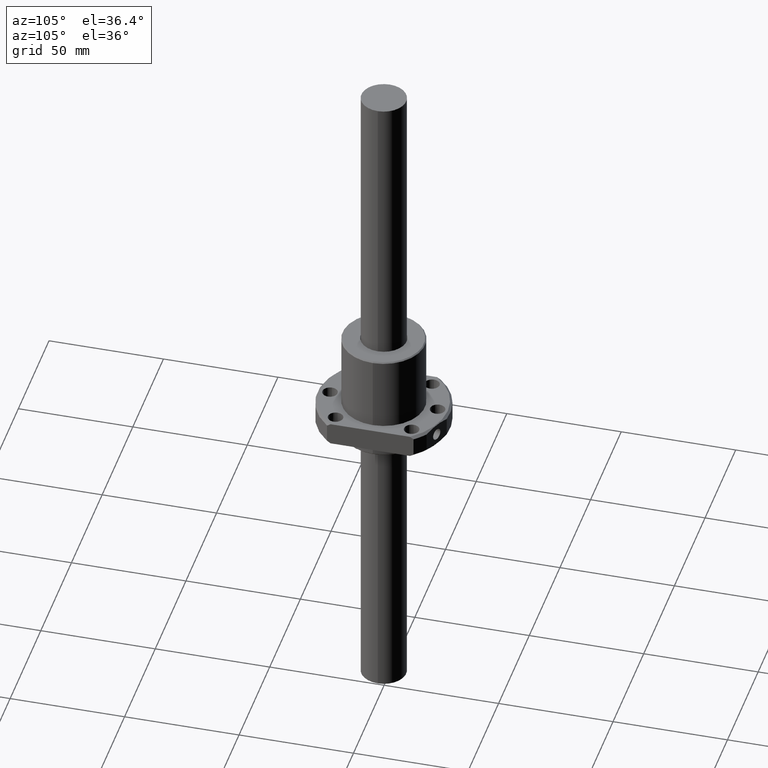
[diagram: clean part render]
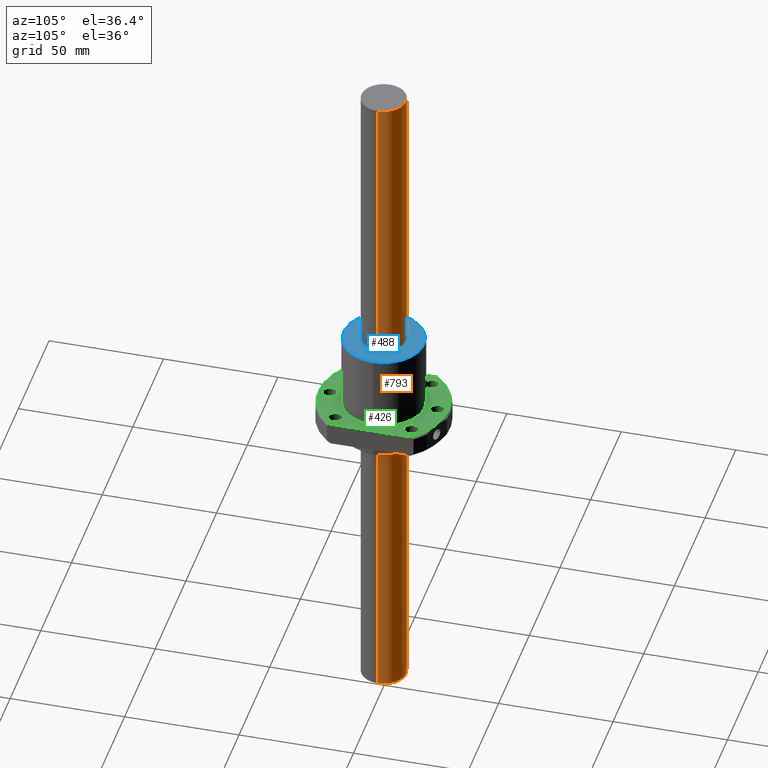
[diagram: same view with three faces highlighted in distinct colors, each labeled with its STEP entity id]
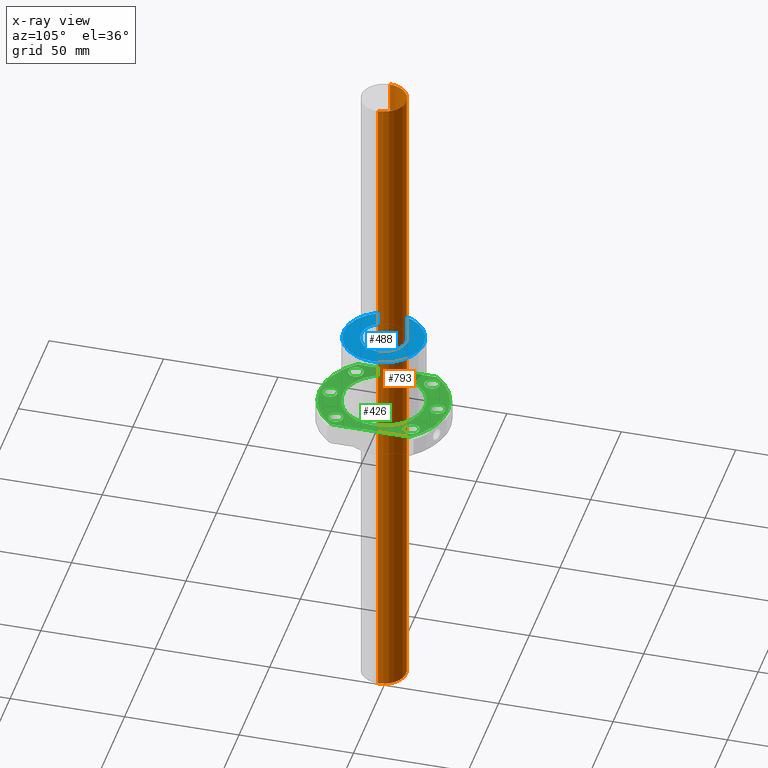
[diagram: x-ray of the same camera — body ghosted, the three highlighted faces saturated]
A machine part, auxiliary view with three faces highlighted in distinct colors.
The next image is the same camera in x-ray (body ghosted, the three faces saturated) — at least one of them is partly hidden behind the body in this view.
Their STEP definitions:

[orange] entity #793 — the highlighted cylindrical surface (edge-blend (fillet) strip) has radius 9.8 mm, axis along (0, 0, 1).
#96 = AXIS2_PLACEMENT_3D ( 'NONE', #1684, #1674, #1645 ) ;
#101 = EDGE_CURVE ( 'NONE', #1476, #1403, #245, .T. ) ;
#245 = LINE ( 'NONE', #396, #1377 ) ;
#259 = ORIENTED_EDGE ( 'NONE', *, *, #101, .F. ) ;
#310 = ORIENTED_EDGE ( 'NONE', *, *, #324, .F. ) ;
#324 = EDGE_CURVE ( 'NONE', #1686, #1476, #363, .T. ) ;
#363 = CIRCLE ( 'NONE', #96, 9.800000000000000700 ) ;
#396 = CARTESIAN_POINT ( 'NONE',  ( 9.800000000000000700, 0.0000000000000000000, -300.0000000000000000 ) ) ;
#431 = VECTOR ( 'NONE', #1144, 1000.000000000000000 ) ;
#511 = ORIENTED_EDGE ( 'NONE', *, *, #1137, .T. ) ;
#550 = CARTESIAN_POINT ( 'NONE',  ( -9.800000000000000700, 1.200153863164406300E-015, -300.0000000000000000 ) ) ;
#588 = DIRECTION ( 'NONE',  ( 0.0000000000000000000, 0.0000000000000000000, 1.000000000000000000 ) ) ;
#718 = CARTESIAN_POINT ( 'NONE',  ( 9.800000000000000700, 0.0000000000000000000, -300.0000000000000000 ) ) ;
#761 = ORIENTED_EDGE ( 'NONE', *, *, #1366, .F. ) ;
#793 = ADVANCED_FACE ( 'NONE', ( #1592 ), #1256, .T. ) ;
#820 = CARTESIAN_POINT ( 'NONE',  ( 9.800000000000000700, 0.0000000000000000000, 0.0000000000000000000 ) ) ;
#840 = DIRECTION ( 'NONE',  ( 1.000000000000000000, 0.0000000000000000000, 0.0000000000000000000 ) ) ;
#842 = DIRECTION ( 'NONE',  ( 0.0000000000000000000, 0.0000000000000000000, 1.000000000000000000 ) ) ;
#849 = CARTESIAN_POINT ( 'NONE',  ( 0.0000000000000000000, 0.0000000000000000000, 0.0000000000000000000 ) ) ;
#854 = CIRCLE ( 'NONE', #1235, 9.800000000000000700 ) ;
#1031 = CARTESIAN_POINT ( 'NONE',  ( -9.800000000000000700, 1.200153863164406300E-015, 0.0000000000000000000 ) ) ;
#1065 = AXIS2_PLACEMENT_3D ( 'NONE', #1492, #1490, #1481 ) ;
#1137 = EDGE_CURVE ( 'NONE', #1686, #1230, #1165, .T. ) ;
#1144 = DIRECTION ( 'NONE',  ( 0.0000000000000000000, 0.0000000000000000000, 1.000000000000000000 ) ) ;
#1153 = CARTESIAN_POINT ( 'NONE',  ( -9.800000000000000700, 1.200153863164406300E-015, -300.0000000000000000 ) ) ;
#1165 = LINE ( 'NONE', #1153, #431 ) ;
#1230 = VERTEX_POINT ( 'NONE', #1031 ) ;
#1235 = AXIS2_PLACEMENT_3D ( 'NONE', #849, #842, #840 ) ;
#1256 = CYLINDRICAL_SURFACE ( 'NONE', #1065, 9.800000000000000700 ) ;
#1366 = EDGE_CURVE ( 'NONE', #1403, #1230, #854, .T. ) ;
#1377 = VECTOR ( 'NONE', #588, 1000.000000000000000 ) ;
#1403 = VERTEX_POINT ( 'NONE', #820 ) ;
#1476 = VERTEX_POINT ( 'NONE', #718 ) ;
#1481 = DIRECTION ( 'NONE',  ( 1.000000000000000000, 0.0000000000000000000, 0.0000000000000000000 ) ) ;
#1490 = DIRECTION ( 'NONE',  ( 0.0000000000000000000, 0.0000000000000000000, 1.000000000000000000 ) ) ;
#1492 = CARTESIAN_POINT ( 'NONE',  ( 0.0000000000000000000, 0.0000000000000000000, -300.0000000000000000 ) ) ;
#1592 = FACE_OUTER_BOUND ( 'NONE', #1646, .T. ) ;
#1645 = DIRECTION ( 'NONE',  ( 1.000000000000000000, 0.0000000000000000000, 0.0000000000000000000 ) ) ;
#1646 = EDGE_LOOP ( 'NONE', ( #310, #511, #761, #259 ) ) ;
#1674 = DIRECTION ( 'NONE',  ( -0.0000000000000000000, -0.0000000000000000000, -1.000000000000000000 ) ) ;
#1684 = CARTESIAN_POINT ( 'NONE',  ( 0.0000000000000000000, 0.0000000000000000000, -300.0000000000000000 ) ) ;
#1686 = VERTEX_POINT ( 'NONE', #550 ) ;

[blue] entity #488 — the highlighted planar face has unit normal (0, 0, -1).
#34 = PLANE ( 'NONE',  #95 ) ;
#95 = AXIS2_PLACEMENT_3D ( 'NONE', #1785, #1780, #1779 ) ;
#134 = VERTEX_POINT ( 'NONE', #279 ) ;
#145 = EDGE_LOOP ( 'NONE', ( #1195, #1126 ) ) ;
#246 = CIRCLE ( 'NONE', #416, 10.00000000000000000 ) ;
#262 = EDGE_CURVE ( 'NONE', #1703, #1719, #246, .T. ) ;
#276 = DIRECTION ( 'NONE',  ( 1.000000000000000000, 0.0000000000000000000, 0.0000000000000000000 ) ) ;
#279 = CARTESIAN_POINT ( 'NONE',  ( 17.50000000000001400, 0.0000000000000000000, -48.49999999999998600 ) ) ;
#291 = DIRECTION ( 'NONE',  ( 0.0000000000000000000, -0.0000000000000000000, 1.000000000000000000 ) ) ;
#292 = CARTESIAN_POINT ( 'NONE',  ( 0.0000000000000000000, 0.0000000000000000000, -48.50000000000000000 ) ) ;
#349 = AXIS2_PLACEMENT_3D ( 'NONE', #395, #291, #276 ) ;
#353 = ORIENTED_EDGE ( 'NONE', *, *, #452, .F. ) ;
#395 = CARTESIAN_POINT ( 'NONE',  ( 0.0000000000000000000, 0.0000000000000000000, -48.49999999999998600 ) ) ;
#416 = AXIS2_PLACEMENT_3D ( 'NONE', #292, #464, #1746 ) ;
#452 = EDGE_CURVE ( 'NONE', #1308, #134, #1345, .T. ) ;
#464 = DIRECTION ( 'NONE',  ( -0.0000000000000000000, -0.0000000000000000000, -1.000000000000000000 ) ) ;
#488 = ADVANCED_FACE ( 'NONE', ( #655, #800 ), #34, .F. ) ;
#492 = DIRECTION ( 'NONE',  ( 1.000000000000000000, 0.0000000000000000000, 0.0000000000000000000 ) ) ;
#493 = DIRECTION ( 'NONE',  ( -0.0000000000000000000, -0.0000000000000000000, -1.000000000000000000 ) ) ;
#506 = CARTESIAN_POINT ( 'NONE',  ( -10.00000000000000000, 1.224646799147353300E-015, -48.50000000000000000 ) ) ;
#513 = CARTESIAN_POINT ( 'NONE',  ( 0.0000000000000000000, 0.0000000000000000000, -48.50000000000000000 ) ) ;
#539 = CARTESIAN_POINT ( 'NONE',  ( 10.00000000000000000, 0.0000000000000000000, -48.50000000000000000 ) ) ;
#606 = AXIS2_PLACEMENT_3D ( 'NONE', #513, #493, #492 ) ;
#655 = FACE_BOUND ( 'NONE', #145, .T. ) ;
#716 = EDGE_LOOP ( 'NONE', ( #1498, #353 ) ) ;
#797 = DIRECTION ( 'NONE',  ( 1.000000000000000000, 0.0000000000000000000, 0.0000000000000000000 ) ) ;
#799 = DIRECTION ( 'NONE',  ( 0.0000000000000000000, -0.0000000000000000000, 1.000000000000000000 ) ) ;
#800 = FACE_OUTER_BOUND ( 'NONE', #716, .T. ) ;
#809 = CARTESIAN_POINT ( 'NONE',  ( 0.0000000000000000000, 0.0000000000000000000, -48.49999999999998600 ) ) ;
#873 = AXIS2_PLACEMENT_3D ( 'NONE', #809, #799, #797 ) ;
#957 = CARTESIAN_POINT ( 'NONE',  ( -17.50000000000001400, 2.173748068486552800E-015, -48.49999999999998600 ) ) ;
#1126 = ORIENTED_EDGE ( 'NONE', *, *, #1726, .F. ) ;
#1140 = CIRCLE ( 'NONE', #873, 17.50000000000001400 ) ;
#1195 = ORIENTED_EDGE ( 'NONE', *, *, #262, .F. ) ;
#1308 = VERTEX_POINT ( 'NONE', #957 ) ;
#1345 = CIRCLE ( 'NONE', #349, 17.50000000000001400 ) ;
#1425 = EDGE_CURVE ( 'NONE', #134, #1308, #1140, .T. ) ;
#1451 = CIRCLE ( 'NONE', #606, 10.00000000000000000 ) ;
#1498 = ORIENTED_EDGE ( 'NONE', *, *, #1425, .F. ) ;
#1703 = VERTEX_POINT ( 'NONE', #539 ) ;
#1719 = VERTEX_POINT ( 'NONE', #506 ) ;
#1726 = EDGE_CURVE ( 'NONE', #1719, #1703, #1451, .T. ) ;
#1746 = DIRECTION ( 'NONE',  ( 1.000000000000000000, 0.0000000000000000000, 0.0000000000000000000 ) ) ;
#1779 = DIRECTION ( 'NONE',  ( 1.000000000000000000, 0.0000000000000000000, 0.0000000000000000000 ) ) ;
#1780 = DIRECTION ( 'NONE',  ( 0.0000000000000000000, 0.0000000000000000000, 1.000000000000000000 ) ) ;
#1785 = CARTESIAN_POINT ( 'NONE',  ( -17.71000000000000100, -17.71000000000000100, -48.50000000000000000 ) ) ;

[green] entity #426 — the highlighted planar face has unit normal (0, 0, -1).
#2 = EDGE_CURVE ( 'NONE', #1053, #1669, #311, .T. ) ;
#15 = AXIS2_PLACEMENT_3D ( 'NONE', #1043, #1036, #1034 ) ;
#45 = ORIENTED_EDGE ( 'NONE', *, *, #1617, .F. ) ;
#67 = CIRCLE ( 'NONE', #1696, 3.299999952000003000 ) ;
#78 = EDGE_CURVE ( 'NONE', #868, #1185, #67, .T. ) ;
#109 = EDGE_CURVE ( 'NONE', #984, #763, #775, .T. ) ;
#115 = CIRCLE ( 'NONE', #666, 18.00000000000000400 ) ;
#125 = EDGE_LOOP ( 'NONE', ( #45, #807 ) ) ;
#147 = EDGE_CURVE ( 'NONE', #763, #1166, #1630, .T. ) ;
#184 = CARTESIAN_POINT ( 'NONE',  ( 19.91499972300000500, 16.61499977100000400, -15.50000000000000000 ) ) ;
#190 = CIRCLE ( 'NONE', #15, 3.299999952000001200 ) ;
#210 = CARTESIAN_POINT ( 'NONE',  ( -16.61499977100000400, -16.61499977100000400, -15.50000000000000000 ) ) ;
#227 = DIRECTION ( 'NONE',  ( 0.0000000000000000000, -0.0000000000000000000, 1.000000000000000000 ) ) ;
#234 = EDGE_CURVE ( 'NONE', #344, #783, #115, .T. ) ;
#242 = VERTEX_POINT ( 'NONE', #184 ) ;
#244 = FACE_BOUND ( 'NONE', #690, .T. ) ;
#247 = AXIS2_PLACEMENT_3D ( 'NONE', #1333, #1332, #1324 ) ;
#257 = EDGE_CURVE ( 'NONE', #1669, #1053, #1341, .T. ) ;
#268 = VERTEX_POINT ( 'NONE', #1315 ) ;
#294 = ORIENTED_EDGE ( 'NONE', *, *, #1609, .F. ) ;
#296 = FACE_BOUND ( 'NONE', #843, .T. ) ;
#298 = EDGE_LOOP ( 'NONE', ( #389, #1250 ) ) ;
#299 = ORIENTED_EDGE ( 'NONE', *, *, #234, .T. ) ;
#309 = CIRCLE ( 'NONE', #499, 3.299999952000000300 ) ;
#311 = CIRCLE ( 'NONE', #432, 3.299999952000000300 ) ;
#320 = AXIS2_PLACEMENT_3D ( 'NONE', #782, #773, #741 ) ;
#333 = EDGE_CURVE ( 'NONE', #783, #344, #1060, .T. ) ;
#344 = VERTEX_POINT ( 'NONE', #1302 ) ;
#350 = CARTESIAN_POINT ( 'NONE',  ( 0.0000000000000000000, -23.50000000000000000, -15.50000000000000000 ) ) ;
#352 = ORIENTED_EDGE ( 'NONE', *, *, #257, .F. ) ;
#368 = DIRECTION ( 'NONE',  ( -0.0000000000000000000, 0.0000000000000000000, -1.000000000000000000 ) ) ;
#385 = FACE_OUTER_BOUND ( 'NONE', #1489, .T. ) ;
#389 = ORIENTED_EDGE ( 'NONE', *, *, #1224, .F. ) ;
#390 = VERTEX_POINT ( 'NONE', #882 ) ;
#405 = ORIENTED_EDGE ( 'NONE', *, *, #2, .F. ) ;
#426 = ADVANCED_FACE ( 'NONE', ( #844, #937, #244, #1276, #1232, #1685, #296, #385 ), #789, .F. ) ;
#427 = CARTESIAN_POINT ( 'NONE',  ( 13.31499981900000400, -16.61499977100000400, -15.50000000000000000 ) ) ;
#432 = AXIS2_PLACEMENT_3D ( 'NONE', #1073, #1263, #1455 ) ;
#499 = AXIS2_PLACEMENT_3D ( 'NONE', #1409, #1408, #1406 ) ;
#516 = EDGE_CURVE ( 'NONE', #905, #242, #1051, .T. ) ;
#520 = EDGE_CURVE ( 'NONE', #1166, #895, #1760, .T. ) ;
#544 = DIRECTION ( 'NONE',  ( 1.000000000000000000, 0.0000000000000000000, 0.0000000000000000000 ) ) ;
#547 = CARTESIAN_POINT ( 'NONE',  ( -3.299999952000000300, 23.50000000000000000, -15.50000000000000000 ) ) ;
#551 = CARTESIAN_POINT ( 'NONE',  ( -3.299999952000000300, -23.50000000000000000, -15.50000000000000000 ) ) ;
#554 = ORIENTED_EDGE ( 'NONE', *, *, #109, .F. ) ;
#556 = ORIENTED_EDGE ( 'NONE', *, *, #806, .F. ) ;
#563 = ORIENTED_EDGE ( 'NONE', *, *, #866, .F. ) ;
#566 = CIRCLE ( 'NONE', #906, 3.299999952000003000 ) ;
#574 = ORIENTED_EDGE ( 'NONE', *, *, #601, .F. ) ;
#590 = DIRECTION ( 'NONE',  ( 1.000000000000000000, 0.0000000000000000000, 0.0000000000000000000 ) ) ;
#593 = DIRECTION ( 'NONE',  ( -0.0000000000000000000, -0.0000000000000000000, -1.000000000000000000 ) ) ;
#595 = CARTESIAN_POINT ( 'NONE',  ( 0.0000000000000000000, 0.0000000000000000000, -15.50000000000000000 ) ) ;
#599 = CIRCLE ( 'NONE', #715, 28.00000000000000000 ) ;
#601 = EDGE_CURVE ( 'NONE', #268, #704, #770, .T. ) ;
#616 = DIRECTION ( 'NONE',  ( 1.000000000000000000, 0.0000000000000000000, 0.0000000000000000000 ) ) ;
#617 = AXIS2_PLACEMENT_3D ( 'NONE', #1452, #1441, #1400 ) ;
#618 = DIRECTION ( 'NONE',  ( -0.0000000000000000000, 0.0000000000000000000, -1.000000000000000000 ) ) ;
#621 = CARTESIAN_POINT ( 'NONE',  ( -16.61499977100000400, -16.61499977100000400, -15.50000000000000000 ) ) ;
#628 = DIRECTION ( 'NONE',  ( 1.000000000000000000, 0.0000000000000000000, 0.0000000000000000000 ) ) ;
#629 = DIRECTION ( 'NONE',  ( -0.0000000000000000000, 0.0000000000000000000, -1.000000000000000000 ) ) ;
#630 = CARTESIAN_POINT ( 'NONE',  ( -16.61499977100000400, 16.61499977100000400, -15.50000000000000000 ) ) ;
#666 = AXIS2_PLACEMENT_3D ( 'NONE', #1474, #227, #1658 ) ;
#690 = EDGE_LOOP ( 'NONE', ( #405, #352 ) ) ;
#704 = VERTEX_POINT ( 'NONE', #1605 ) ;
#711 = CIRCLE ( 'NONE', #1667, 3.299999952000001200 ) ;
#713 = EDGE_LOOP ( 'NONE', ( #563, #1348 ) ) ;
#715 = AXIS2_PLACEMENT_3D ( 'NONE', #595, #593, #590 ) ;
#741 = DIRECTION ( 'NONE',  ( 1.000000000000000000, 0.0000000000000000000, 0.0000000000000000000 ) ) ;
#763 = VERTEX_POINT ( 'NONE', #1509 ) ;
#770 = CIRCLE ( 'NONE', #1028, 3.299999952000003000 ) ;
#773 = DIRECTION ( 'NONE',  ( 0.0000000000000000000, 0.0000000000000000000, 1.000000000000000000 ) ) ;
#775 = LINE ( 'NONE', #956, #1327 ) ;
#782 = CARTESIAN_POINT ( 'NONE',  ( -22.00000000000000000, -28.33600000000000200, -15.50000000000000000 ) ) ;
#783 = VERTEX_POINT ( 'NONE', #1491 ) ;
#789 = PLANE ( 'NONE',  #320 ) ;
#806 = EDGE_CURVE ( 'NONE', #926, #1747, #1204, .T. ) ;
#807 = ORIENTED_EDGE ( 'NONE', *, *, #78, .F. ) ;
#818 = CARTESIAN_POINT ( 'NONE',  ( 0.0000000000000000000, 0.0000000000000000000, -15.50000000000000000 ) ) ;
#835 = DIRECTION ( 'NONE',  ( 1.000000000000000000, 0.0000000000000000000, 0.0000000000000000000 ) ) ;
#837 = EDGE_LOOP ( 'NONE', ( #1354, #299 ) ) ;
#843 = EDGE_LOOP ( 'NONE', ( #574, #294 ) ) ;
#844 = FACE_BOUND ( 'NONE', #837, .T. ) ;
#846 = AXIS2_PLACEMENT_3D ( 'NONE', #350, #1401, #835 ) ;
#858 = CIRCLE ( 'NONE', #247, 3.299999952000000300 ) ;
#866 = EDGE_CURVE ( 'NONE', #390, #1690, #309, .T. ) ;
#868 = VERTEX_POINT ( 'NONE', #1399 ) ;
#882 = CARTESIAN_POINT ( 'NONE',  ( 3.299999952000000300, 23.50000000000000000, -15.50000000000000000 ) ) ;
#895 = VERTEX_POINT ( 'NONE', #1356 ) ;
#905 = VERTEX_POINT ( 'NONE', #1357 ) ;
#906 = AXIS2_PLACEMENT_3D ( 'NONE', #621, #618, #616 ) ;
#926 = VERTEX_POINT ( 'NONE', #1346 ) ;
#934 = EDGE_CURVE ( 'NONE', #1690, #390, #858, .T. ) ;
#937 = FACE_BOUND ( 'NONE', #125, .T. ) ;
#949 = AXIS2_PLACEMENT_3D ( 'NONE', #630, #629, #628 ) ;
#956 = CARTESIAN_POINT ( 'NONE',  ( -22.00000000000000000, 0.0000000000000000000, -15.50000000000000000 ) ) ;
#962 = AXIS2_PLACEMENT_3D ( 'NONE', #1467, #1463, #1460 ) ;
#984 = VERTEX_POINT ( 'NONE', #1310 ) ;
#1028 = AXIS2_PLACEMENT_3D ( 'NONE', #1673, #1672, #1671 ) ;
#1034 = DIRECTION ( 'NONE',  ( 1.000000000000000000, 0.0000000000000000000, 0.0000000000000000000 ) ) ;
#1036 = DIRECTION ( 'NONE',  ( -0.0000000000000000000, 0.0000000000000000000, -1.000000000000000000 ) ) ;
#1039 = ORIENTED_EDGE ( 'NONE', *, *, #147, .F. ) ;
#1043 = CARTESIAN_POINT ( 'NONE',  ( 16.61499977100000400, -16.61499977100000400, -15.50000000000000000 ) ) ;
#1046 = DIRECTION ( 'NONE',  ( 1.000000000000000000, 0.0000000000000000000, 0.0000000000000000000 ) ) ;
#1047 = DIRECTION ( 'NONE',  ( -0.0000000000000000000, 0.0000000000000000000, -1.000000000000000000 ) ) ;
#1048 = CARTESIAN_POINT ( 'NONE',  ( 16.61499977100000400, 16.61499977100000400, -15.50000000000000000 ) ) ;
#1051 = CIRCLE ( 'NONE', #1750, 3.299999952000001200 ) ;
#1053 = VERTEX_POINT ( 'NONE', #1211 ) ;
#1058 = CARTESIAN_POINT ( 'NONE',  ( -13.31499981900000200, -16.61499977100000400, -15.50000000000000000 ) ) ;
#1060 = CIRCLE ( 'NONE', #617, 18.00000000000000400 ) ;
#1072 = ORIENTED_EDGE ( 'NONE', *, *, #1650, .T. ) ;
#1073 = CARTESIAN_POINT ( 'NONE',  ( 0.0000000000000000000, -23.50000000000000000, -15.50000000000000000 ) ) ;
#1085 = CARTESIAN_POINT ( 'NONE',  ( 22.00000000000000000, -17.32050807943773000, -15.49999999768093600 ) ) ;
#1150 = DIRECTION ( 'NONE',  ( 0.0000000000000000000, -1.000000000000000000, 0.0000000000000000000 ) ) ;
#1166 = VERTEX_POINT ( 'NONE', #1085 ) ;
#1185 = VERTEX_POINT ( 'NONE', #1058 ) ;
#1196 = EDGE_LOOP ( 'NONE', ( #556, #1568 ) ) ;
#1204 = CIRCLE ( 'NONE', #962, 3.299999952000001200 ) ;
#1211 = CARTESIAN_POINT ( 'NONE',  ( 3.299999952000000300, -23.50000000000000000, -15.50000000000000000 ) ) ;
#1224 = EDGE_CURVE ( 'NONE', #242, #905, #711, .T. ) ;
#1228 = EDGE_CURVE ( 'NONE', #1747, #926, #190, .T. ) ;
#1232 = FACE_BOUND ( 'NONE', #298, .T. ) ;
#1250 = ORIENTED_EDGE ( 'NONE', *, *, #516, .F. ) ;
#1263 = DIRECTION ( 'NONE',  ( -0.0000000000000000000, -0.0000000000000000000, -1.000000000000000000 ) ) ;
#1276 = FACE_BOUND ( 'NONE', #1196, .T. ) ;
#1282 = CIRCLE ( 'NONE', #949, 3.299999952000003000 ) ;
#1302 = CARTESIAN_POINT ( 'NONE',  ( -18.00000000000000400, 2.204364238465235800E-015, -15.50000000000000000 ) ) ;
#1310 = CARTESIAN_POINT ( 'NONE',  ( -22.00000000000000000, 17.32050807568877800, -15.50000000000000000 ) ) ;
#1315 = CARTESIAN_POINT ( 'NONE',  ( -13.31499981900000200, 16.61499977100000400, -15.50000000000000000 ) ) ;
#1324 = DIRECTION ( 'NONE',  ( 1.000000000000000000, 0.0000000000000000000, 0.0000000000000000000 ) ) ;
#1327 = VECTOR ( 'NONE', #1150, 1000.000000000000000 ) ;
#1332 = DIRECTION ( 'NONE',  ( -0.0000000000000000000, -0.0000000000000000000, -1.000000000000000000 ) ) ;
#1333 = CARTESIAN_POINT ( 'NONE',  ( 0.0000000000000000000, 23.50000000000000000, -15.50000000000000000 ) ) ;
#1341 = CIRCLE ( 'NONE', #846, 3.299999952000000300 ) ;
#1346 = CARTESIAN_POINT ( 'NONE',  ( 19.91499972300000500, -16.61499977100000400, -15.50000000000000000 ) ) ;
#1348 = ORIENTED_EDGE ( 'NONE', *, *, #934, .F. ) ;
#1354 = ORIENTED_EDGE ( 'NONE', *, *, #333, .T. ) ;
#1356 = CARTESIAN_POINT ( 'NONE',  ( 22.00000000000000000, 17.32050808018440700, -15.49999999721904900 ) ) ;
#1357 = CARTESIAN_POINT ( 'NONE',  ( 13.31499981900000400, 16.61499977100000400, -15.50000000000000000 ) ) ;
#1399 = CARTESIAN_POINT ( 'NONE',  ( -19.91499972300000800, -16.61499977100000400, -15.50000000000000000 ) ) ;
#1400 = DIRECTION ( 'NONE',  ( 1.000000000000000000, 0.0000000000000000000, 0.0000000000000000000 ) ) ;
#1401 = DIRECTION ( 'NONE',  ( -0.0000000000000000000, -0.0000000000000000000, -1.000000000000000000 ) ) ;
#1406 = DIRECTION ( 'NONE',  ( 1.000000000000000000, 0.0000000000000000000, 0.0000000000000000000 ) ) ;
#1408 = DIRECTION ( 'NONE',  ( -0.0000000000000000000, -0.0000000000000000000, -1.000000000000000000 ) ) ;
#1409 = CARTESIAN_POINT ( 'NONE',  ( 0.0000000000000000000, 23.50000000000000000, -15.50000000000000000 ) ) ;
#1441 = DIRECTION ( 'NONE',  ( 0.0000000000000000000, -0.0000000000000000000, 1.000000000000000000 ) ) ;
#1452 = CARTESIAN_POINT ( 'NONE',  ( 0.0000000000000000000, 0.0000000000000000000, -15.50000000000000000 ) ) ;
#1455 = DIRECTION ( 'NONE',  ( 1.000000000000000000, 0.0000000000000000000, 0.0000000000000000000 ) ) ;
#1460 = DIRECTION ( 'NONE',  ( 1.000000000000000000, 0.0000000000000000000, 0.0000000000000000000 ) ) ;
#1463 = DIRECTION ( 'NONE',  ( -0.0000000000000000000, 0.0000000000000000000, -1.000000000000000000 ) ) ;
#1467 = CARTESIAN_POINT ( 'NONE',  ( 16.61499977100000400, -16.61499977100000400, -15.50000000000000000 ) ) ;
#1474 = CARTESIAN_POINT ( 'NONE',  ( 0.0000000000000000000, 0.0000000000000000000, -15.50000000000000000 ) ) ;
#1489 = EDGE_LOOP ( 'NONE', ( #1039, #554, #1072, #1659 ) ) ;
#1491 = CARTESIAN_POINT ( 'NONE',  ( 18.00000000000000400, 0.0000000000000000000, -15.50000000000000000 ) ) ;
#1509 = CARTESIAN_POINT ( 'NONE',  ( -22.00000000000000000, -17.32050807568877800, -15.50000000000000000 ) ) ;
#1568 = ORIENTED_EDGE ( 'NONE', *, *, #1228, .F. ) ;
#1570 = DIRECTION ( 'NONE',  ( 0.0000000000000000000, 0.0000000000000000000, 1.000000000000000000 ) ) ;
#1605 = CARTESIAN_POINT ( 'NONE',  ( -19.91499972300000800, 16.61499977100000400, -15.50000000000000000 ) ) ;
#1609 = EDGE_CURVE ( 'NONE', #704, #268, #1282, .T. ) ;
#1617 = EDGE_CURVE ( 'NONE', #1185, #868, #566, .T. ) ;
#1620 = AXIS2_PLACEMENT_3D ( 'NONE', #818, #1570, #1768 ) ;
#1630 = CIRCLE ( 'NONE', #1620, 28.00000000000000000 ) ;
#1650 = EDGE_CURVE ( 'NONE', #984, #895, #599, .T. ) ;
#1653 = VECTOR ( 'NONE', #1755, 1000.000000000000000 ) ;
#1658 = DIRECTION ( 'NONE',  ( 1.000000000000000000, 0.0000000000000000000, 0.0000000000000000000 ) ) ;
#1659 = ORIENTED_EDGE ( 'NONE', *, *, #520, .F. ) ;
#1667 = AXIS2_PLACEMENT_3D ( 'NONE', #1048, #1047, #1046 ) ;
#1669 = VERTEX_POINT ( 'NONE', #551 ) ;
#1671 = DIRECTION ( 'NONE',  ( 1.000000000000000000, 0.0000000000000000000, 0.0000000000000000000 ) ) ;
#1672 = DIRECTION ( 'NONE',  ( -0.0000000000000000000, 0.0000000000000000000, -1.000000000000000000 ) ) ;
#1673 = CARTESIAN_POINT ( 'NONE',  ( -16.61499977100000400, 16.61499977100000400, -15.50000000000000000 ) ) ;
#1685 = FACE_BOUND ( 'NONE', #713, .T. ) ;
#1690 = VERTEX_POINT ( 'NONE', #547 ) ;
#1696 = AXIS2_PLACEMENT_3D ( 'NONE', #210, #368, #544 ) ;
#1747 = VERTEX_POINT ( 'NONE', #427 ) ;
#1750 = AXIS2_PLACEMENT_3D ( 'NONE', #1771, #1770, #1763 ) ;
#1755 = DIRECTION ( 'NONE',  ( 0.0000000000000000000, 1.000000000000000000, 0.0000000000000000000 ) ) ;
#1759 = CARTESIAN_POINT ( 'NONE',  ( 22.00000000000000000, 0.0000000000000000000, -15.50000000000000000 ) ) ;
#1760 = LINE ( 'NONE', #1759, #1653 ) ;
#1763 = DIRECTION ( 'NONE',  ( 1.000000000000000000, 0.0000000000000000000, 0.0000000000000000000 ) ) ;
#1768 = DIRECTION ( 'NONE',  ( 1.000000000000000000, 0.0000000000000000000, 0.0000000000000000000 ) ) ;
#1770 = DIRECTION ( 'NONE',  ( -0.0000000000000000000, 0.0000000000000000000, -1.000000000000000000 ) ) ;
#1771 = CARTESIAN_POINT ( 'NONE',  ( 16.61499977100000400, 16.61499977100000400, -15.50000000000000000 ) ) ;